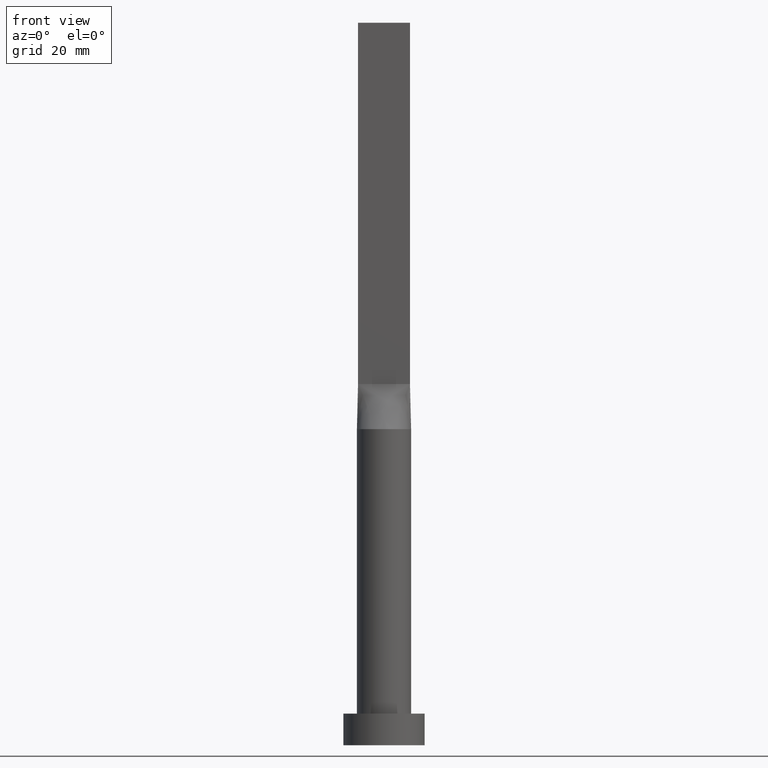
[diagram: clean part render]
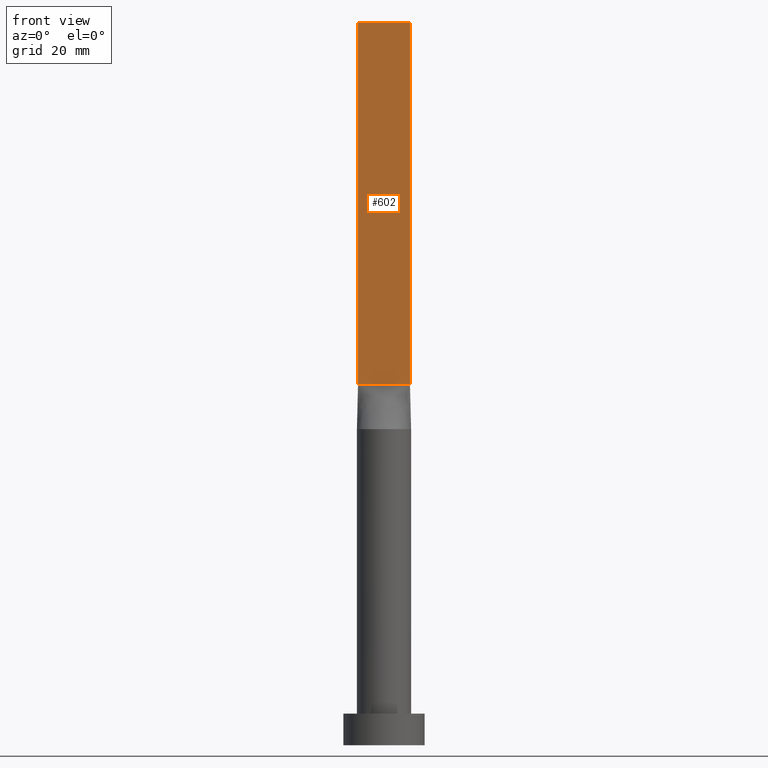
[diagram: same view with one face highlighted and labeled with its STEP entity id]
A machine part, front view. The second image highlights one B-rep face of the part: STEP entity #602.
In plain terms, the highlighted planar face has unit normal (0, 1, -0).
Its self-contained STEP definition (entity closure, byte-faithful):
#2 = EDGE_CURVE ( 'NONE', #601, #67, #319, .T. ) ;
#26 = CARTESIAN_POINT ( 'NONE',  ( 5.750000000000000000, -0.9999999999999997780, 80.00000000000000000 ) ) ;
#45 = CARTESIAN_POINT ( 'NONE',  ( -5.750000000000000000, -0.9999999999999988898, 160.0000000000000000 ) ) ;
#53 = CARTESIAN_POINT ( 'NONE',  ( -5.750000000000000000, -0.9999999999999988898, 160.0000000000000000 ) ) ;
#57 = PLANE ( 'NONE',  #249 ) ;
#67 = VERTEX_POINT ( 'NONE', #26 ) ;
#73 = CARTESIAN_POINT ( 'NONE',  ( -5.750000000000000000, -0.9999999999999988898, 160.0000000000000000 ) ) ;
#84 = VERTEX_POINT ( 'NONE', #73 ) ;
#102 = VECTOR ( 'NONE', #198, 1000.000000000000000 ) ;
#170 = CARTESIAN_POINT ( 'NONE',  ( -5.750000000000000000, -0.9999999999999988898, 80.00000000000000000 ) ) ;
#182 = EDGE_CURVE ( 'NONE', #84, #601, #322, .T. ) ;
#194 = LINE ( 'NONE', #388, #102 ) ;
#198 = DIRECTION ( 'NONE',  ( -0.000000000000000000, -0.000000000000000000, -1.000000000000000000 ) ) ;
#244 = DIRECTION ( 'NONE',  ( -1.000000000000000000, 7.542275982507857147E-17, 0.000000000000000000 ) ) ;
#248 = ORIENTED_EDGE ( 'NONE', *, *, #616, .F. ) ;
#249 = AXIS2_PLACEMENT_3D ( 'NONE', #53, #497, #244 ) ;
#272 = CARTESIAN_POINT ( 'NONE',  ( 5.750000000000000000, -0.9999999999999997780, 160.0000000000000000 ) ) ;
#290 = FACE_OUTER_BOUND ( 'NONE', #540, .T. ) ;
#311 = ORIENTED_EDGE ( 'NONE', *, *, #2, .T. ) ;
#319 = LINE ( 'NONE', #170, #432 ) ;
#322 = LINE ( 'NONE', #45, #390 ) ;
#345 = DIRECTION ( 'NONE',  ( 1.000000000000000000, -7.542275982507857147E-17, 0.000000000000000000 ) ) ;
#354 = ORIENTED_EDGE ( 'NONE', *, *, #549, .F. ) ;
#367 = LINE ( 'NONE', #565, #373 ) ;
#373 = VECTOR ( 'NONE', #620, 1000.000000000000000 ) ;
#388 = CARTESIAN_POINT ( 'NONE',  ( 5.750000000000000000, -0.9999999999999997780, 160.0000000000000000 ) ) ;
#389 = CARTESIAN_POINT ( 'NONE',  ( -5.750000000000000000, -0.9999999999999988898, 80.00000000000000000 ) ) ;
#390 = VECTOR ( 'NONE', #417, 1000.000000000000000 ) ;
#415 = VERTEX_POINT ( 'NONE', #272 ) ;
#417 = DIRECTION ( 'NONE',  ( -0.000000000000000000, -0.000000000000000000, -1.000000000000000000 ) ) ;
#432 = VECTOR ( 'NONE', #345, 1000.000000000000000 ) ;
#468 = ORIENTED_EDGE ( 'NONE', *, *, #182, .T. ) ;
#497 = DIRECTION ( 'NONE',  ( 7.542275982507857147E-17, 1.000000000000000000, -0.000000000000000000 ) ) ;
#540 = EDGE_LOOP ( 'NONE', ( #311, #248, #354, #468 ) ) ;
#549 = EDGE_CURVE ( 'NONE', #84, #415, #367, .T. ) ;
#565 = CARTESIAN_POINT ( 'NONE',  ( -5.750000000000000000, -0.9999999999999988898, 160.0000000000000000 ) ) ;
#601 = VERTEX_POINT ( 'NONE', #389 ) ;
#602 = ADVANCED_FACE ( 'NONE', ( #290 ), #57, .F. ) ;
#616 = EDGE_CURVE ( 'NONE', #415, #67, #194, .T. ) ;
#620 = DIRECTION ( 'NONE',  ( 1.000000000000000000, -7.542275982507857147E-17, 0.000000000000000000 ) ) ;